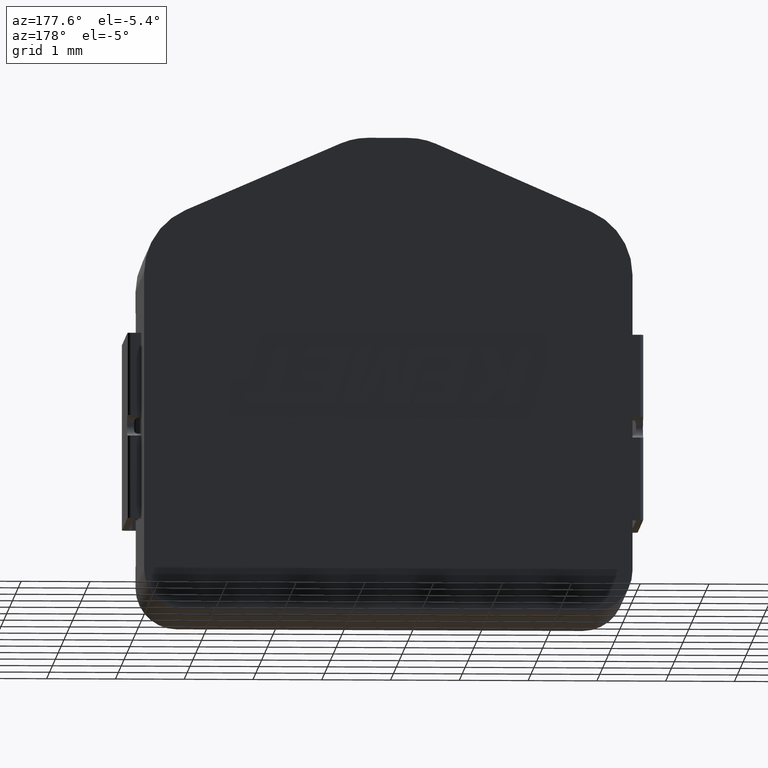
[diagram: clean part render]
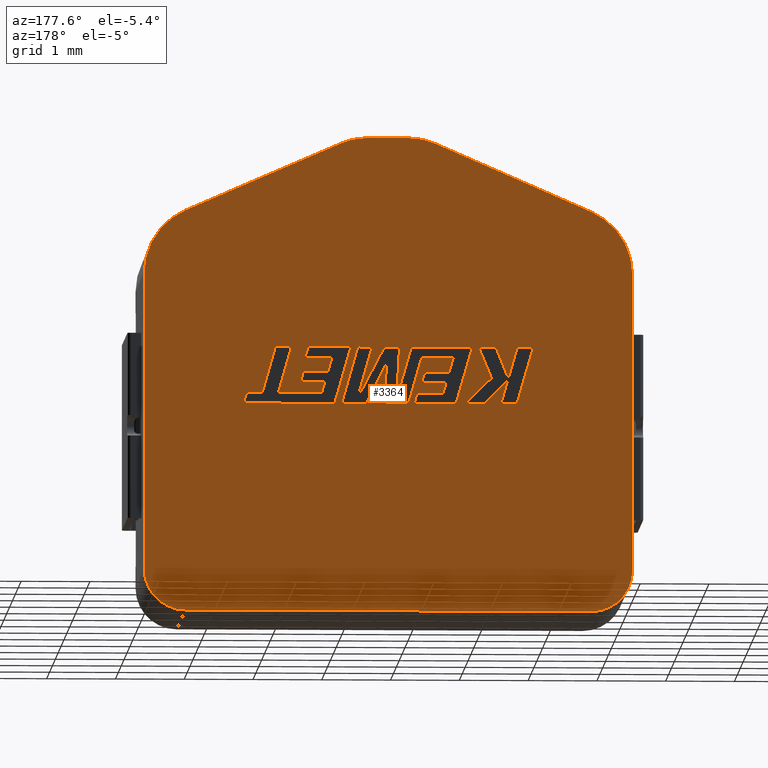
[diagram: same view with one face highlighted and labeled with its STEP entity id]
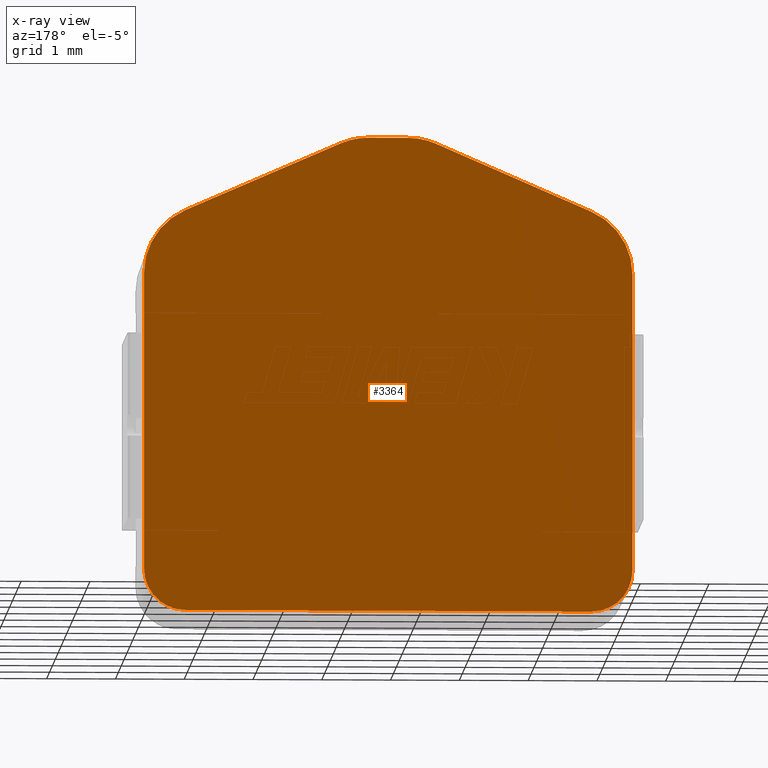
[diagram: x-ray of the same camera — body ghosted, the highlighted face saturated]
A machine part, auxiliary view. The second image highlights one B-rep face of the part: STEP entity #3364.
The next image is the same camera in x-ray: the body ghosted, the highlighted face saturated — about 0% of this face is hidden behind the body in this view.
In plain terms, the highlighted planar face has unit normal (0, -1, 0).
Its self-contained STEP definition (entity closure, byte-faithful):
#40 = VERTEX_POINT ( 'NONE', #748 ) ;
#76 = CIRCLE ( 'NONE', #534, 1.000000000000000000 ) ;
#124 = CIRCLE ( 'NONE', #1068, 1.000000000000000000 ) ;
#273 = VERTEX_POINT ( 'NONE', #661 ) ;
#313 = ORIENTED_EDGE ( 'NONE', *, *, #2002, .F. ) ;
#350 = DIRECTION ( 'NONE',  ( -8.673617379884035500E-016, 0.0000000000000000000, -1.000000000000000000 ) ) ;
#381 = CIRCLE ( 'NONE', #4768, 0.5999999999999998700 ) ;
#387 = EDGE_CURVE ( 'NONE', #40, #1134, #2888, .T. ) ;
#534 = AXIS2_PLACEMENT_3D ( 'NONE', #2298, #1895, #1189 ) ;
#535 = DIRECTION ( 'NONE',  ( 1.000000000000000000, 0.0000000000000000000, 0.0000000000000000000 ) ) ;
#565 = EDGE_CURVE ( 'NONE', #1265, #610, #1708, .T. ) ;
#599 = DIRECTION ( 'NONE',  ( -0.0000000000000000000, 1.000000000000000000, -0.0000000000000000000 ) ) ;
#610 = VERTEX_POINT ( 'NONE', #3866 ) ;
#611 = DIRECTION ( 'NONE',  ( -0.9169839503796321000, 0.0000000000000000000, -0.3989240964722040600 ) ) ;
#619 = CARTESIAN_POINT ( 'NONE',  ( 5.959489662753301600, 3.000000000000000000, -5.977093836854994200 ) ) ;
#625 = VERTEX_POINT ( 'NONE', #1219 ) ;
#661 = CARTESIAN_POINT ( 'NONE',  ( 2.117589525244693700, 3.000000000000000000, 0.3229061631450061400 ) ) ;
#662 = DIRECTION ( 'NONE',  ( -0.0000000000000000000, 1.000000000000000000, -0.0000000000000000000 ) ) ;
#748 = CARTESIAN_POINT ( 'NONE',  ( -1.140510337246697100, 3.000000000000000000, -1.659456120312027300 ) ) ;
#822 = VECTOR ( 'NONE', #1760, 1000.000000000000000 ) ;
#827 = ORIENTED_EDGE ( 'NONE', *, *, #387, .T. ) ;
#836 = DIRECTION ( 'NONE',  ( 0.0000000000000000000, -0.0000000000000000000, -1.000000000000000000 ) ) ;
#855 = ORIENTED_EDGE ( 'NONE', *, *, #3042, .F. ) ;
#893 = DIRECTION ( 'NONE',  ( 0.0000000000000000000, 0.0000000000000000000, -1.000000000000000000 ) ) ;
#914 = AXIS2_PLACEMENT_3D ( 'NONE', #3423, #3077, #1541 ) ;
#959 = EDGE_CURVE ( 'NONE', #2960, #1079, #2405, .T. ) ;
#967 = CARTESIAN_POINT ( 'NONE',  ( 3.100313896734117100, 3.000000000000000000, 0.2398901135246380700 ) ) ;
#1019 = EDGE_LOOP ( 'NONE', ( #2790, #3745, #1174, #1441, #4070, #2669, #855, #827, #1034, #3141, #313, #1618 ) ) ;
#1034 = ORIENTED_EDGE ( 'NONE', *, *, #4625, .F. ) ;
#1068 = AXIS2_PLACEMENT_3D ( 'NONE', #3544, #599, #1326 ) ;
#1079 = VERTEX_POINT ( 'NONE', #2324 ) ;
#1103 = LINE ( 'NONE', #2779, #3984 ) ;
#1134 = VERTEX_POINT ( 'NONE', #3418 ) ;
#1174 = ORIENTED_EDGE ( 'NONE', *, *, #1269, .T. ) ;
#1189 = DIRECTION ( 'NONE',  ( 0.0000000000000000000, 0.0000000000000000000, -1.000000000000000000 ) ) ;
#1219 = CARTESIAN_POINT ( 'NONE',  ( 2.701389800261913000, 3.000000000000000000, 0.3229061631450061400 ) ) ;
#1220 = PLANE ( 'NONE',  #3413 ) ;
#1265 = VERTEX_POINT ( 'NONE', #619 ) ;
#1269 = EDGE_CURVE ( 'NONE', #1079, #1265, #1815, .T. ) ;
#1322 = AXIS2_PLACEMENT_3D ( 'NONE', #3153, #3471, #893 ) ;
#1326 = DIRECTION ( 'NONE',  ( 0.0000000000000000000, 0.0000000000000000000, -1.000000000000000000 ) ) ;
#1431 = CARTESIAN_POINT ( 'NONE',  ( -0.5405103372466973900, 3.000000000000000000, -6.577093836854993800 ) ) ;
#1441 = ORIENTED_EDGE ( 'NONE', *, *, #565, .T. ) ;
#1463 = LINE ( 'NONE', #2858, #3807 ) ;
#1541 = DIRECTION ( 'NONE',  ( 0.0000000000000000000, 0.0000000000000000000, -1.000000000000000000 ) ) ;
#1618 = ORIENTED_EDGE ( 'NONE', *, *, #4377, .T. ) ;
#1660 = VECTOR ( 'NONE', #3319, 1000.000000000000000 ) ;
#1708 = CIRCLE ( 'NONE', #1322, 0.5999999999999998700 ) ;
#1760 = DIRECTION ( 'NONE',  ( -3.112655681774527800E-016, 0.0000000000000000000, -1.000000000000000000 ) ) ;
#1767 = CARTESIAN_POINT ( 'NONE',  ( 1.718665428772489600, 3.000000000000000000, 0.2398901135246382900 ) ) ;
#1785 = LINE ( 'NONE', #3348, #1660 ) ;
#1815 = LINE ( 'NONE', #4016, #822 ) ;
#1851 = CARTESIAN_POINT ( 'NONE',  ( -1.140510337246697100, 3.000000000000000000, -1.003963836854993900 ) ) ;
#1853 = EDGE_CURVE ( 'NONE', #3102, #4365, #381, .T. ) ;
#1895 = DIRECTION ( 'NONE',  ( -0.0000000000000000000, 1.000000000000000000, -0.0000000000000000000 ) ) ;
#2002 = EDGE_CURVE ( 'NONE', #625, #273, #1785, .T. ) ;
#2062 = CARTESIAN_POINT ( 'NONE',  ( 1.909489662753303100, 3.000000000000000000, 0.3229061631450061400 ) ) ;
#2173 = VECTOR ( 'NONE', #611, 1000.000000000000200 ) ;
#2220 = CARTESIAN_POINT ( 'NONE',  ( 4.959489662753303400, 3.000000000000000000, -1.659456120312027500 ) ) ;
#2243 = DIRECTION ( 'NONE',  ( 0.0000000000000000000, 0.0000000000000000000, -1.000000000000000000 ) ) ;
#2298 = CARTESIAN_POINT ( 'NONE',  ( 2.701389800261913000, 3.000000000000000000, -0.6770938368549939100 ) ) ;
#2324 = CARTESIAN_POINT ( 'NONE',  ( 5.959489662753303400, 3.000000000000000000, -1.659456120312027700 ) ) ;
#2375 = DIRECTION ( 'NONE',  ( 0.0000000000000000000, -1.000000000000000000, 0.0000000000000000000 ) ) ;
#2405 = CIRCLE ( 'NONE', #4573, 1.000000000000000000 ) ;
#2434 = VERTEX_POINT ( 'NONE', #967 ) ;
#2587 = DIRECTION ( 'NONE',  ( -0.0000000000000000000, 1.000000000000000000, -0.0000000000000000000 ) ) ;
#2669 = ORIENTED_EDGE ( 'NONE', *, *, #1853, .T. ) ;
#2779 = CARTESIAN_POINT ( 'NONE',  ( -1.140510337246697100, 3.000000000000000000, -6.577093836854993800 ) ) ;
#2790 = ORIENTED_EDGE ( 'NONE', *, *, #4585, .T. ) ;
#2827 = EDGE_CURVE ( 'NONE', #3102, #610, #1103, .T. ) ;
#2858 = CARTESIAN_POINT ( 'NONE',  ( 2.909489662753303100, 3.000000000000000000, 0.3229061631450061400 ) ) ;
#2888 = CIRCLE ( 'NONE', #914, 0.9999999999999997800 ) ;
#2906 = CARTESIAN_POINT ( 'NONE',  ( -0.5405103372466971700, 3.000000000000000000, -5.977093836854994200 ) ) ;
#2909 = CARTESIAN_POINT ( 'NONE',  ( 5.358413759225507000, 3.000000000000000000, -0.7424721699323955100 ) ) ;
#2938 = FACE_OUTER_BOUND ( 'NONE', #1019, .T. ) ;
#2960 = VERTEX_POINT ( 'NONE', #2909 ) ;
#3042 = EDGE_CURVE ( 'NONE', #40, #4365, #4451, .T. ) ;
#3077 = DIRECTION ( 'NONE',  ( -0.0000000000000000000, 1.000000000000000000, -0.0000000000000000000 ) ) ;
#3102 = VERTEX_POINT ( 'NONE', #1431 ) ;
#3141 = ORIENTED_EDGE ( 'NONE', *, *, #4813, .T. ) ;
#3153 = CARTESIAN_POINT ( 'NONE',  ( 5.359489662753302000, 3.000000000000000000, -5.977093836854994200 ) ) ;
#3319 = DIRECTION ( 'NONE',  ( -1.000000000000000000, 0.0000000000000000000, 0.0000000000000000000 ) ) ;
#3348 = CARTESIAN_POINT ( 'NONE',  ( 2.909489662753303100, 3.000000000000000000, 0.3229061631450061400 ) ) ;
#3364 = ADVANCED_FACE ( 'NONE', ( #2938 ), #1220, .F. ) ;
#3413 = AXIS2_PLACEMENT_3D ( 'NONE', #4236, #2375, #836 ) ;
#3418 = CARTESIAN_POINT ( 'NONE',  ( -0.5394344337189007600, 3.000000000000000000, -0.7424721699323948400 ) ) ;
#3423 = CARTESIAN_POINT ( 'NONE',  ( -0.1405103372466970900, 3.000000000000000000, -1.659456120312027300 ) ) ;
#3438 = CARTESIAN_POINT ( 'NONE',  ( -1.140510337246697100, 3.000000000000000000, -5.977093836854994200 ) ) ;
#3471 = DIRECTION ( 'NONE',  ( -0.0000000000000000000, 1.000000000000000000, -0.0000000000000000000 ) ) ;
#3544 = CARTESIAN_POINT ( 'NONE',  ( 2.117589525244693700, 3.000000000000000000, -0.6770938368549939100 ) ) ;
#3591 = DIRECTION ( 'NONE',  ( 0.9169839503796319800, 0.0000000000000000000, -0.3989240964722041700 ) ) ;
#3715 = VECTOR ( 'NONE', #2243, 1000.000000000000000 ) ;
#3745 = ORIENTED_EDGE ( 'NONE', *, *, #959, .T. ) ;
#3807 = VECTOR ( 'NONE', #3591, 1000.000000000000100 ) ;
#3866 = CARTESIAN_POINT ( 'NONE',  ( 5.359489662753300200, 3.000000000000000000, -6.577093836854993800 ) ) ;
#3984 = VECTOR ( 'NONE', #535, 1000.000000000000000 ) ;
#4016 = CARTESIAN_POINT ( 'NONE',  ( 5.959489662753303400, 3.000000000000000000, -1.003963836854994600 ) ) ;
#4042 = LINE ( 'NONE', #2062, #2173 ) ;
#4070 = ORIENTED_EDGE ( 'NONE', *, *, #2827, .F. ) ;
#4236 = CARTESIAN_POINT ( 'NONE',  ( 0.0000000000000000000, 3.000000000000000000, 0.0000000000000000000 ) ) ;
#4365 = VERTEX_POINT ( 'NONE', #3438 ) ;
#4377 = EDGE_CURVE ( 'NONE', #625, #2434, #76, .T. ) ;
#4451 = LINE ( 'NONE', #1851, #3715 ) ;
#4573 = AXIS2_PLACEMENT_3D ( 'NONE', #2220, #2587, #350 ) ;
#4585 = EDGE_CURVE ( 'NONE', #2434, #2960, #1463, .T. ) ;
#4625 = EDGE_CURVE ( 'NONE', #4702, #1134, #4042, .T. ) ;
#4702 = VERTEX_POINT ( 'NONE', #1767 ) ;
#4703 = DIRECTION ( 'NONE',  ( 0.0000000000000000000, 0.0000000000000000000, -1.000000000000000000 ) ) ;
#4768 = AXIS2_PLACEMENT_3D ( 'NONE', #2906, #662, #4703 ) ;
#4813 = EDGE_CURVE ( 'NONE', #4702, #273, #124, .T. ) ;